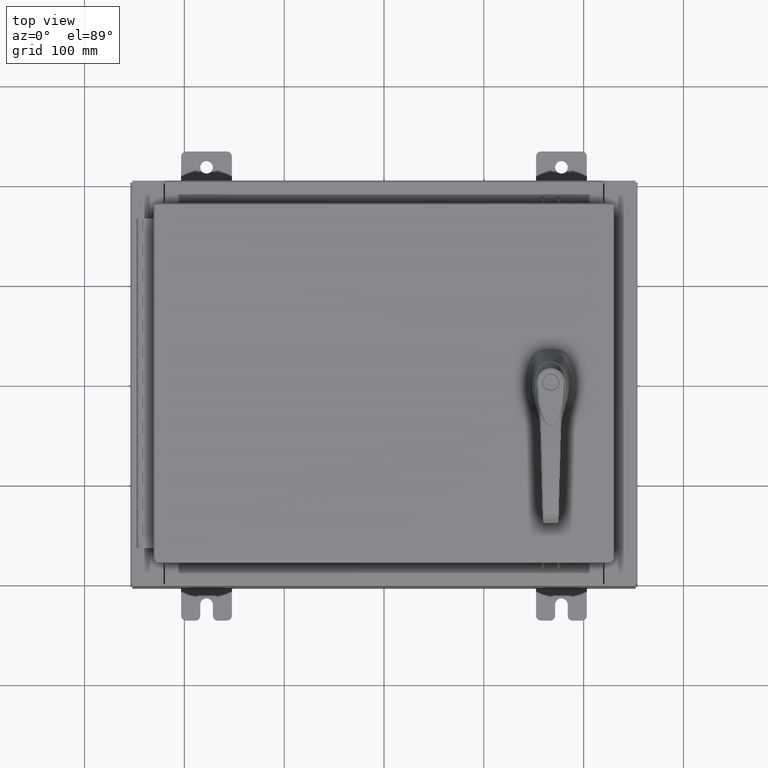
[diagram: clean part render]
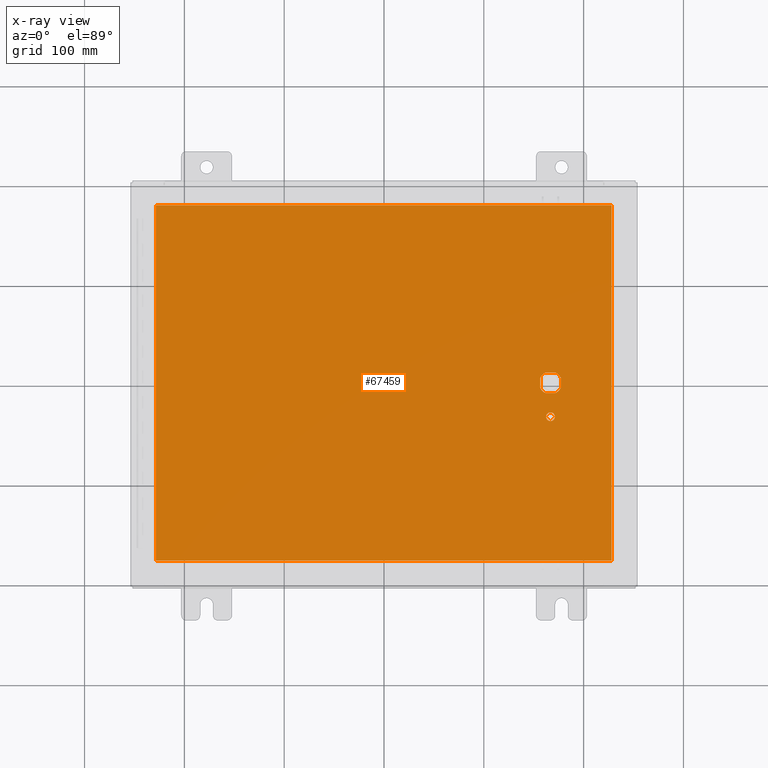
[diagram: x-ray — body ghosted, one internal face saturated and labeled with its STEP entity id]
A machine part, top view, then the same camera in x-ray: the body is ghosted and one INTERNAL B-rep face — a face not visible from any outside direction — is saturated and labeled: STEP entity #67459.
In plain terms, the highlighted planar face has unit normal (0, 0, -1).
Its self-contained STEP definition (entity closure, byte-faithful):
#9 = VERTEX_POINT ( 'NONE', #61953 ) ;
#765 = CARTESIAN_POINT ( 'NONE',  ( 8.990299999999997700, 7.006300000000001300, -0.07470000000000000300 ) ) ;
#1779 = DIRECTION ( 'NONE',  ( 0.0000000000000000000, 1.000000000000000000, 0.0000000000000000000 ) ) ;
#2012 = DIRECTION ( 'NONE',  ( -1.000000000000000000, 0.0000000000000000000, 0.0000000000000000000 ) ) ;
#3124 = AXIS2_PLACEMENT_3D ( 'NONE', #13751, #71674, #22097 ) ;
#5146 = VECTOR ( 'NONE', #64631, 39.37007874015748100 ) ;
#5369 = FACE_BOUND ( 'NONE', #13468, .T. ) ;
#5559 = ORIENTED_EDGE ( 'NONE', *, *, #40312, .T. ) ;
#5980 = VECTOR ( 'NONE', #96700, 39.37007874015748100 ) ;
#6233 = DIRECTION ( 'NONE',  ( -0.0000000000000000000, -0.0000000000000000000, 1.000000000000000000 ) ) ;
#6678 = ORIENTED_EDGE ( 'NONE', *, *, #85806, .F. ) ;
#7842 = EDGE_CURVE ( 'NONE', #66259, #35970, #99968, .T. ) ;
#7902 = CARTESIAN_POINT ( 'NONE',  ( 6.577999999999999400, -1.338000000000000100, -0.07470000000000003000 ) ) ;
#9373 = VERTEX_POINT ( 'NONE', #45915 ) ;
#11438 = DIRECTION ( 'NONE',  ( 2.728745808672813300E-015, -1.000000000000000000, 0.0000000000000000000 ) ) ;
#11885 = EDGE_LOOP ( 'NONE', ( #49465, #88504 ) ) ;
#12777 = EDGE_CURVE ( 'NONE', #97843, #52286, #90564, .T. ) ;
#13307 = DIRECTION ( 'NONE',  ( -0.0000000000000000000, -0.0000000000000000000, 1.000000000000000000 ) ) ;
#13347 = EDGE_LOOP ( 'NONE', ( #105187, #64519, #68114, #6678 ) ) ;
#13468 = EDGE_LOOP ( 'NONE', ( #5559, #22407, #32947, #64094, #80213, #49827, #104840, #71648 ) ) ;
#13751 = CARTESIAN_POINT ( 'NONE',  ( 6.577999999999999400, 0.0000000000000000000, -0.07470000000000003000 ) ) ;
#14094 = VECTOR ( 'NONE', #2012, 39.37007874015748100 ) ;
#16014 = LINE ( 'NONE', #100957, #101505 ) ;
#16227 = DIRECTION ( 'NONE',  ( -1.000000000000000000, 0.0000000000000000000, 0.0000000000000000000 ) ) ;
#19714 = EDGE_CURVE ( 'NONE', #44967, #68978, #16014, .T. ) ;
#19917 = EDGE_CURVE ( 'NONE', #9373, #40782, #24318, .T. ) ;
#21088 = CARTESIAN_POINT ( 'NONE',  ( -8.990299999999997700, -7.006299999999998600, -0.07469999999999966900 ) ) ;
#22097 = DIRECTION ( 'NONE',  ( -1.000000000000000000, 0.0000000000000000000, 0.0000000000000000000 ) ) ;
#22407 = ORIENTED_EDGE ( 'NONE', *, *, #36770, .F. ) ;
#24318 = LINE ( 'NONE', #78888, #46367 ) ;
#26075 = CARTESIAN_POINT ( 'NONE',  ( 6.980999999999925300, 0.2002273707563080300, -0.07470000000000003000 ) ) ;
#29118 = DIRECTION ( 'NONE',  ( 0.0000000000000000000, -1.000000000000000000, 0.0000000000000000000 ) ) ;
#29220 = AXIS2_PLACEMENT_3D ( 'NONE', #36356, #94248, #44692 ) ;
#29662 = DIRECTION ( 'NONE',  ( 0.0000000000000000000, -1.000000000000000000, 0.0000000000000000000 ) ) ;
#32292 = CARTESIAN_POINT ( 'NONE',  ( 6.175000000000073500, -0.2002273707563079800, -0.07470000000000003000 ) ) ;
#32947 = ORIENTED_EDGE ( 'NONE', *, *, #7842, .T. ) ;
#33048 = DIRECTION ( 'NONE',  ( 0.0000000000000000000, 0.0000000000000000000, -1.000000000000000000 ) ) ;
#33430 = EDGE_CURVE ( 'NONE', #48311, #9, #94347, .T. ) ;
#33681 = CIRCLE ( 'NONE', #44744, 0.1715000000000011500 ) ;
#34548 = CARTESIAN_POINT ( 'NONE',  ( 6.377772629243690300, 0.4029999999999252000, -0.07470000000000003000 ) ) ;
#35477 = CARTESIAN_POINT ( 'NONE',  ( 8.990300000000001300, 7.006300000000001300, -0.07470000000000021100 ) ) ;
#35493 = CARTESIAN_POINT ( 'NONE',  ( 6.377772629243690300, -0.4029999999999250300, -0.07470000000000003000 ) ) ;
#35970 = VERTEX_POINT ( 'NONE', #95959 ) ;
#36356 = CARTESIAN_POINT ( 'NONE',  ( 6.577999999999999400, 0.0000000000000000000, -0.07470000000000003000 ) ) ;
#36770 = EDGE_CURVE ( 'NONE', #66259, #80628, #58265, .T. ) ;
#39351 = CARTESIAN_POINT ( 'NONE',  ( 6.980999999999925300, -0.2002273707563075900, -0.07470000000000003000 ) ) ;
#40312 = EDGE_CURVE ( 'NONE', #52286, #80628, #68297, .T. ) ;
#40782 = VERTEX_POINT ( 'NONE', #32292 ) ;
#41052 = PLANE ( 'NONE',  #76261 ) ;
#43800 = DIRECTION ( 'NONE',  ( -1.000000000000000000, -0.0000000000000000000, -0.0000000000000000000 ) ) ;
#44325 = CARTESIAN_POINT ( 'NONE',  ( 6.577999999999999400, 0.0000000000000000000, -0.07470000000000003000 ) ) ;
#44692 = DIRECTION ( 'NONE',  ( -1.000000000000000000, 0.0000000000000000000, 0.0000000000000000000 ) ) ;
#44744 = AXIS2_PLACEMENT_3D ( 'NONE', #62827, #13307, #71230 ) ;
#44967 = VERTEX_POINT ( 'NONE', #48652 ) ;
#45915 = CARTESIAN_POINT ( 'NONE',  ( 6.175000000000073500, 0.2002273707563080300, -0.07470000000000003000 ) ) ;
#46367 = VECTOR ( 'NONE', #29662, 39.37007874015748100 ) ;
#47082 = EDGE_CURVE ( 'NONE', #85805, #73598, #74249, .T. ) ;
#48030 = EDGE_CURVE ( 'NONE', #99579, #9373, #59133, .T. ) ;
#48311 = VERTEX_POINT ( 'NONE', #79421 ) ;
#48652 = CARTESIAN_POINT ( 'NONE',  ( 8.990299999999999500, -7.006299999999998600, -0.07470000000000000300 ) ) ;
#49366 = FACE_OUTER_BOUND ( 'NONE', #13347, .T. ) ;
#49465 = ORIENTED_EDGE ( 'NONE', *, *, #76295, .T. ) ;
#49787 = CIRCLE ( 'NONE', #75120, 0.4499999999999156900 ) ;
#49827 = ORIENTED_EDGE ( 'NONE', *, *, #19917, .T. ) ;
#51204 = EDGE_CURVE ( 'NONE', #9, #44967, #69442, .T. ) ;
#51251 = CARTESIAN_POINT ( 'NONE',  ( 6.778227370756309400, -0.4029999999999252000, -0.07470000000000003000 ) ) ;
#52286 = VERTEX_POINT ( 'NONE', #51251 ) ;
#52319 = LINE ( 'NONE', #35477, #91124 ) ;
#52643 = DIRECTION ( 'NONE',  ( -1.000000000000000000, 1.776356839400251300E-015, 0.0000000000000000000 ) ) ;
#53075 = EDGE_CURVE ( 'NONE', #40782, #97843, #49787, .T. ) ;
#55523 = AXIS2_PLACEMENT_3D ( 'NONE', #7902, #65792, #16227 ) ;
#55801 = CARTESIAN_POINT ( 'NONE',  ( 6.577999999999999400, 0.0000000000000000000, -0.07470000000000003000 ) ) ;
#58265 = LINE ( 'NONE', #102642, #77791 ) ;
#59133 = CIRCLE ( 'NONE', #29220, 0.4499999999999156900 ) ;
#60154 = EDGE_CURVE ( 'NONE', #35970, #99579, #82692, .T. ) ;
#61953 = CARTESIAN_POINT ( 'NONE',  ( -8.990299999999996000, -7.006299999999998600, -0.07470000000000000300 ) ) ;
#62827 = CARTESIAN_POINT ( 'NONE',  ( 6.577999999999999400, -1.338000000000000100, -0.07470000000000003000 ) ) ;
#64090 = DIRECTION ( 'NONE',  ( -1.000000000000000000, 8.881784197001256300E-016, 0.0000000000000000000 ) ) ;
#64094 = ORIENTED_EDGE ( 'NONE', *, *, #60154, .T. ) ;
#64519 = ORIENTED_EDGE ( 'NONE', *, *, #51204, .F. ) ;
#64631 = DIRECTION ( 'NONE',  ( 1.000000000000000000, 0.0000000000000000000, 0.0000000000000000000 ) ) ;
#65792 = DIRECTION ( 'NONE',  ( -0.0000000000000000000, -0.0000000000000000000, 1.000000000000000000 ) ) ;
#65970 = CARTESIAN_POINT ( 'NONE',  ( 0.0000000000000000000, 0.0000000000000000000, -0.07470000000000000300 ) ) ;
#66259 = VERTEX_POINT ( 'NONE', #26075 ) ;
#67459 = ADVANCED_FACE ( 'NONE', ( #90765, #49366, #5369 ), #41052, .T. ) ;
#68114 = ORIENTED_EDGE ( 'NONE', *, *, #33430, .F. ) ;
#68297 = CIRCLE ( 'NONE', #105335, 0.4499999999999156900 ) ;
#68978 = VERTEX_POINT ( 'NONE', #765 ) ;
#69442 = LINE ( 'NONE', #21088, #5980 ) ;
#70359 = CARTESIAN_POINT ( 'NONE',  ( -8.990299999999999500, 7.006300000000001300, -0.07470000000000183400 ) ) ;
#71230 = DIRECTION ( 'NONE',  ( -1.000000000000000000, 0.0000000000000000000, 0.0000000000000000000 ) ) ;
#71648 = ORIENTED_EDGE ( 'NONE', *, *, #12777, .T. ) ;
#71674 = DIRECTION ( 'NONE',  ( -0.0000000000000000000, -0.0000000000000000000, 1.000000000000000000 ) ) ;
#73296 = CARTESIAN_POINT ( 'NONE',  ( 6.749500000000001200, -1.338000000000000100, -0.07470000000000003000 ) ) ;
#73598 = VERTEX_POINT ( 'NONE', #73296 ) ;
#74249 = CIRCLE ( 'NONE', #55523, 0.1715000000000011500 ) ;
#75120 = AXIS2_PLACEMENT_3D ( 'NONE', #55801, #6233, #64090 ) ;
#75126 = CARTESIAN_POINT ( 'NONE',  ( 0.0000000000000000000, 0.4029999999999252000, -0.07470000000000003000 ) ) ;
#76261 = AXIS2_PLACEMENT_3D ( 'NONE', #65970, #33048, #90936 ) ;
#76295 = EDGE_CURVE ( 'NONE', #73598, #85805, #33681, .T. ) ;
#77791 = VECTOR ( 'NONE', #11438, 39.37007874015748100 ) ;
#78888 = CARTESIAN_POINT ( 'NONE',  ( 6.175000000000073500, 0.0000000000000000000, -0.07470000000000003000 ) ) ;
#79421 = CARTESIAN_POINT ( 'NONE',  ( -8.990299999999997700, 7.006300000000000400, -0.07470000000000000300 ) ) ;
#80213 = ORIENTED_EDGE ( 'NONE', *, *, #48030, .T. ) ;
#80628 = VERTEX_POINT ( 'NONE', #39351 ) ;
#82692 = LINE ( 'NONE', #75126, #14094 ) ;
#84667 = CARTESIAN_POINT ( 'NONE',  ( 6.406499999999998500, -1.338000000000000100, -0.07470000000000003000 ) ) ;
#85805 = VERTEX_POINT ( 'NONE', #84667 ) ;
#85806 = EDGE_CURVE ( 'NONE', #68978, #48311, #52319, .T. ) ;
#88504 = ORIENTED_EDGE ( 'NONE', *, *, #47082, .T. ) ;
#90564 = LINE ( 'NONE', #105926, #5146 ) ;
#90765 = FACE_BOUND ( 'NONE', #11885, .T. ) ;
#90936 = DIRECTION ( 'NONE',  ( -1.000000000000000000, 0.0000000000000000000, -0.0000000000000000000 ) ) ;
#91124 = VECTOR ( 'NONE', #43800, 39.37007874015748100 ) ;
#91706 = VECTOR ( 'NONE', #29118, 39.37007874015748100 ) ;
#94248 = DIRECTION ( 'NONE',  ( -0.0000000000000000000, -0.0000000000000000000, 1.000000000000000000 ) ) ;
#94347 = LINE ( 'NONE', #70359, #91706 ) ;
#95959 = CARTESIAN_POINT ( 'NONE',  ( 6.778227370756309400, 0.4029999999999250300, -0.07470000000000003000 ) ) ;
#96700 = DIRECTION ( 'NONE',  ( 1.000000000000000000, -0.0000000000000000000, -0.0000000000000000000 ) ) ;
#97843 = VERTEX_POINT ( 'NONE', #35493 ) ;
#99579 = VERTEX_POINT ( 'NONE', #34548 ) ;
#99968 = CIRCLE ( 'NONE', #3124, 0.4499999999999156900 ) ;
#100957 = CARTESIAN_POINT ( 'NONE',  ( 8.990299999999999500, -7.006299999999998600, -0.07470000000000076600 ) ) ;
#101505 = VECTOR ( 'NONE', #1779, 39.37007874015748100 ) ;
#102229 = DIRECTION ( 'NONE',  ( -0.0000000000000000000, -0.0000000000000000000, 1.000000000000000000 ) ) ;
#102642 = CARTESIAN_POINT ( 'NONE',  ( 6.980999999999925300, 1.904937449034470600E-014, -0.07470000000000003000 ) ) ;
#104840 = ORIENTED_EDGE ( 'NONE', *, *, #53075, .T. ) ;
#105187 = ORIENTED_EDGE ( 'NONE', *, *, #19714, .F. ) ;
#105335 = AXIS2_PLACEMENT_3D ( 'NONE', #44325, #102229, #52643 ) ;
#105926 = CARTESIAN_POINT ( 'NONE',  ( 0.0000000000000000000, -0.4029999999999252000, -0.07470000000000003000 ) ) ;